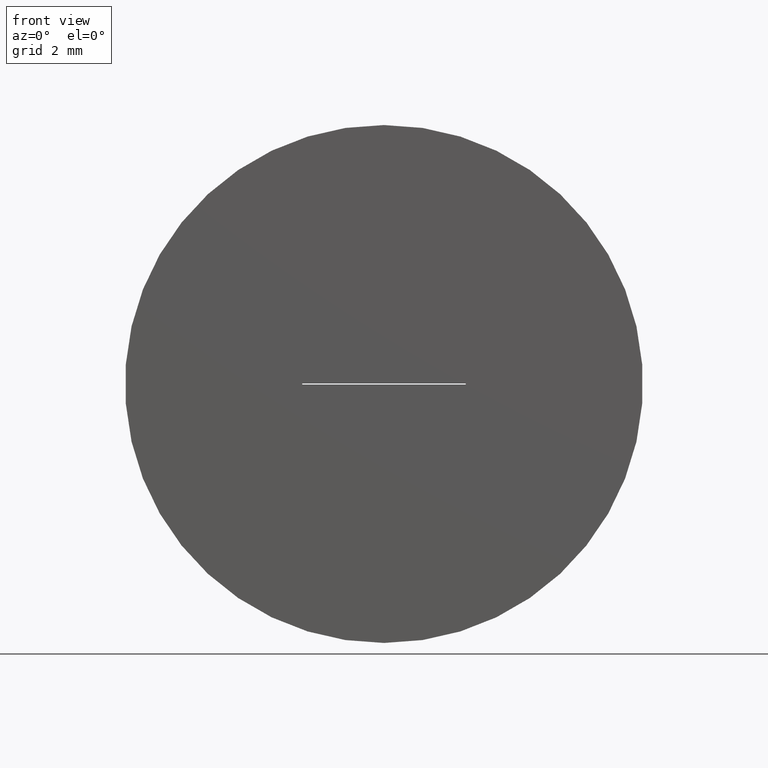
[diagram: clean part render]
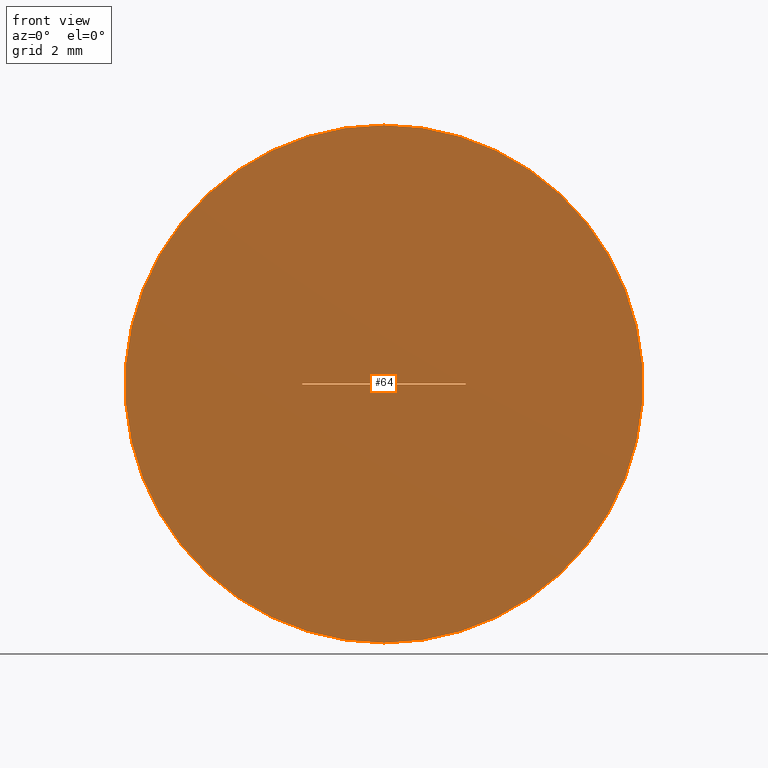
[diagram: same view with one face highlighted and labeled with its STEP entity id]
A machine part, front view. The second image highlights one B-rep face of the part: STEP entity #64.
In plain terms, the highlighted planar face has unit normal (0, 1, 0).
Its self-contained STEP definition (entity closure, byte-faithful):
#4 = VECTOR ( 'NONE', #85, 1000.000000000000000 ) ;
#6 = CARTESIAN_POINT ( 'NONE',  ( -1.500000000000000000, 0.000000000000000000, 0.01000000000000000194 ) ) ;
#11 = CARTESIAN_POINT ( 'NONE',  ( 0.000000000000000000, 0.000000000000000000, 0.000000000000000000 ) ) ;
#21 = EDGE_LOOP ( 'NONE', ( #285, #138 ) ) ;
#22 = AXIS2_PLACEMENT_3D ( 'NONE', #96, #201, #176 ) ;
#27 = PLANE ( 'NONE',  #22 ) ;
#35 = LINE ( 'NONE', #271, #244 ) ;
#36 = CARTESIAN_POINT ( 'NONE',  ( -1.500000000000000000, 0.000000000000000000, 0.01000000000000000194 ) ) ;
#50 = ORIENTED_EDGE ( 'NONE', *, *, #119, .T. ) ;
#58 = CIRCLE ( 'NONE', #151, 4.750000000000000000 ) ;
#64 = ADVANCED_FACE ( 'NONE', ( #150, #217 ), #27, .F. ) ;
#73 = AXIS2_PLACEMENT_3D ( 'NONE', #11, #278, #130 ) ;
#77 = DIRECTION ( 'NONE',  ( 0.000000000000000000, 0.000000000000000000, 1.000000000000000000 ) ) ;
#84 = CARTESIAN_POINT ( 'NONE',  ( 0.000000000000000000, 0.000000000000000000, 0.000000000000000000 ) ) ;
#85 = DIRECTION ( 'NONE',  ( -0.000000000000000000, -0.000000000000000000, -1.000000000000000000 ) ) ;
#86 = EDGE_CURVE ( 'NONE', #290, #118, #153, .T. ) ;
#96 = CARTESIAN_POINT ( 'NONE',  ( 0.000000000000000000, 0.000000000000000000, 0.000000000000000000 ) ) ;
#101 = CARTESIAN_POINT ( 'NONE',  ( 1.500000000000000000, 0.000000000000000000, 0.01000000000000000194 ) ) ;
#104 = DIRECTION ( 'NONE',  ( 0.000000000000000000, 1.000000000000000000, 0.000000000000000000 ) ) ;
#106 = EDGE_CURVE ( 'NONE', #120, #290, #35, .T. ) ;
#118 = VERTEX_POINT ( 'NONE', #101 ) ;
#119 = EDGE_CURVE ( 'NONE', #214, #120, #173, .T. ) ;
#120 = VERTEX_POINT ( 'NONE', #266 ) ;
#130 = DIRECTION ( 'NONE',  ( 0.000000000000000000, 0.000000000000000000, 1.000000000000000000 ) ) ;
#136 = VECTOR ( 'NONE', #197, 1000.000000000000000 ) ;
#138 = ORIENTED_EDGE ( 'NONE', *, *, #248, .F. ) ;
#139 = ORIENTED_EDGE ( 'NONE', *, *, #106, .T. ) ;
#150 = FACE_OUTER_BOUND ( 'NONE', #21, .T. ) ;
#151 = AXIS2_PLACEMENT_3D ( 'NONE', #84, #104, #158 ) ;
#153 = LINE ( 'NONE', #6, #155 ) ;
#155 = VECTOR ( 'NONE', #196, 1000.000000000000000 ) ;
#158 = DIRECTION ( 'NONE',  ( 0.000000000000000000, 0.000000000000000000, 1.000000000000000000 ) ) ;
#173 = LINE ( 'NONE', #249, #136 ) ;
#176 = DIRECTION ( 'NONE',  ( 0.000000000000000000, -0.000000000000000000, 1.000000000000000000 ) ) ;
#184 = CARTESIAN_POINT ( 'NONE',  ( 5.817072295949927426E-16, 0.000000000000000000, 4.750000000000000000 ) ) ;
#191 = VERTEX_POINT ( 'NONE', #184 ) ;
#192 = EDGE_CURVE ( 'NONE', #118, #214, #251, .T. ) ;
#196 = DIRECTION ( 'NONE',  ( 1.000000000000000000, 0.000000000000000000, 0.000000000000000000 ) ) ;
#197 = DIRECTION ( 'NONE',  ( -1.000000000000000000, -0.000000000000000000, -0.000000000000000000 ) ) ;
#201 = DIRECTION ( 'NONE',  ( 0.000000000000000000, 1.000000000000000000, 0.000000000000000000 ) ) ;
#208 = ORIENTED_EDGE ( 'NONE', *, *, #86, .T. ) ;
#209 = EDGE_CURVE ( 'NONE', #308, #191, #254, .T. ) ;
#214 = VERTEX_POINT ( 'NONE', #257 ) ;
#217 = FACE_BOUND ( 'NONE', #233, .T. ) ;
#233 = EDGE_LOOP ( 'NONE', ( #239, #50, #139, #208 ) ) ;
#239 = ORIENTED_EDGE ( 'NONE', *, *, #192, .T. ) ;
#244 = VECTOR ( 'NONE', #77, 1000.000000000000000 ) ;
#248 = EDGE_CURVE ( 'NONE', #191, #308, #58, .T. ) ;
#249 = CARTESIAN_POINT ( 'NONE',  ( -1.500000000000000000, 0.000000000000000000, -0.009999999999999998473 ) ) ;
#251 = LINE ( 'NONE', #280, #4 ) ;
#254 = CIRCLE ( 'NONE', #73, 4.750000000000000000 ) ;
#255 = CARTESIAN_POINT ( 'NONE',  ( 0.000000000000000000, 0.000000000000000000, -4.750000000000000000 ) ) ;
#257 = CARTESIAN_POINT ( 'NONE',  ( 1.500000000000000000, 0.000000000000000000, -0.009999999999999998473 ) ) ;
#266 = CARTESIAN_POINT ( 'NONE',  ( -1.500000000000000000, 0.000000000000000000, -0.009999999999999998473 ) ) ;
#271 = CARTESIAN_POINT ( 'NONE',  ( -1.500000000000000000, 0.000000000000000000, -0.009999999999999998473 ) ) ;
#278 = DIRECTION ( 'NONE',  ( 0.000000000000000000, 1.000000000000000000, 0.000000000000000000 ) ) ;
#280 = CARTESIAN_POINT ( 'NONE',  ( 1.500000000000000000, 0.000000000000000000, -0.009999999999999998473 ) ) ;
#285 = ORIENTED_EDGE ( 'NONE', *, *, #209, .F. ) ;
#290 = VERTEX_POINT ( 'NONE', #36 ) ;
#308 = VERTEX_POINT ( 'NONE', #255 ) ;